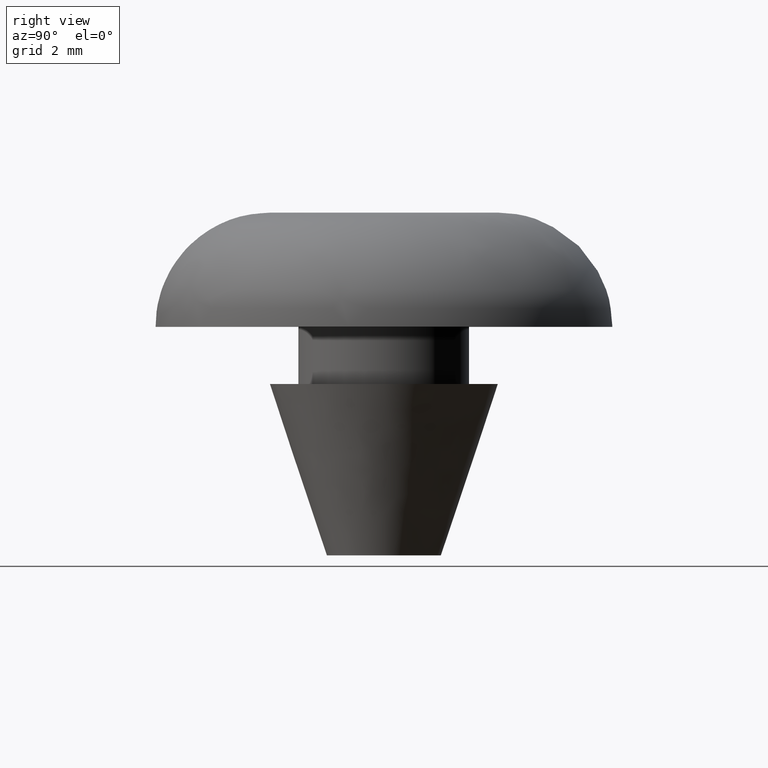
[diagram: clean part render]
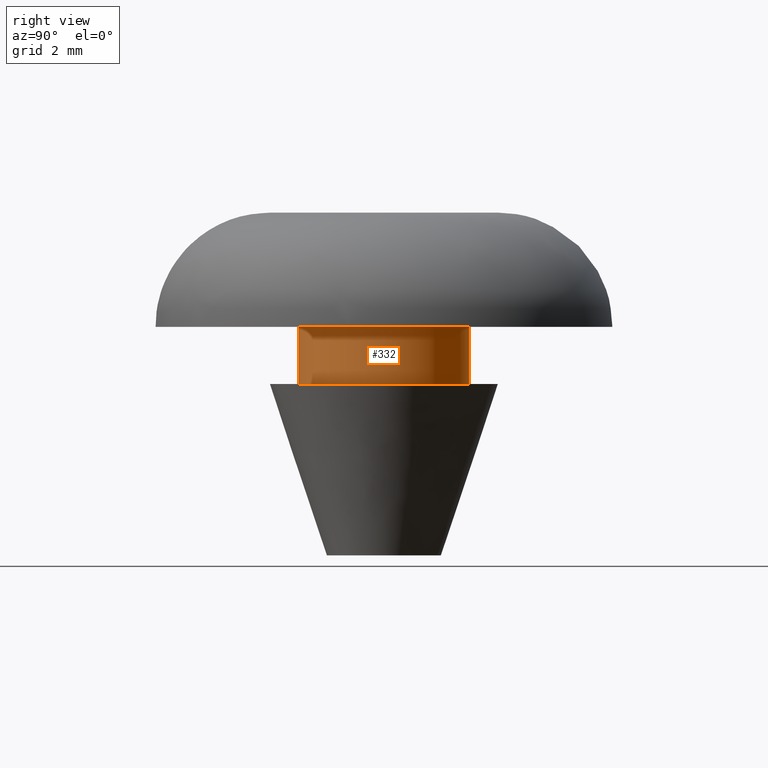
[diagram: same view with one face highlighted and labeled with its STEP entity id]
A machine part, right view. The second image highlights one B-rep face of the part: STEP entity #332.
In plain terms, the highlighted face is a freeform B-spline surface patch.
Its self-contained STEP definition (entity closure, byte-faithful):
#230=CARTESIAN_POINT('',(-0.177051351985138,1.489514289545500,4.025000000000001));
#231=CARTESIAN_POINT('',(-0.134422092956966,1.494581423172908,4.025000000000000));
#232=CARTESIAN_POINT('',(-0.091572809302285,1.497202197632800,4.025000000000000));
#233=CARTESIAN_POINT('',(1.405629388330515,1.588775006935085,4.025000000000000));
#234=CARTESIAN_POINT('',(1.497202197632800,0.091572809302285,4.025000000000000));
#235=CARTESIAN_POINT('',(1.588775006935085,-1.405629388330515,4.025000000000000));
#236=CARTESIAN_POINT('',(0.091572809302285,-1.497202197632800,4.025000000000000));
#237=CARTESIAN_POINT('',(-0.177051351985138,1.489514289545500,2.974375000000000));
#238=CARTESIAN_POINT('',(-0.134422092956966,1.494581423172908,2.974374999999999));
#239=CARTESIAN_POINT('',(-0.091572809302285,1.497202197632800,2.974374999999999));
#240=CARTESIAN_POINT('',(1.405629388330515,1.588775006935085,2.974375000000000));
#241=CARTESIAN_POINT('',(1.497202197632800,0.091572809302285,2.974374999999999));
#242=CARTESIAN_POINT('',(1.588775006935085,-1.405629388330515,2.974375000000000));
#243=CARTESIAN_POINT('',(0.091572809302285,-1.497202197632800,2.974374999999999));
#251=(BOUNDED_SURFACE()B_SPLINE_SURFACE(2,1,((#230,#237),(#231,#238),(#232,#239),(#233,#240),(#234,#241),(#235,#242),(#236,#243)),.UNSPECIFIED.,.F.,.F.,.U.)B_SPLINE_SURFACE_WITH_KNOTS((3,2,2,3),(2,2),(3.078760800517997,3.141592653589793,4.712388980384690,6.283185307179586),(0.0,1.0),.UNSPECIFIED.)GEOMETRIC_REPRESENTATION_ITEM()RATIONAL_B_SPLINE_SURFACE(((0.977505800795127,0.977505800795127),(0.988284271247462,0.988284271247462),(1.0,1.0),(0.707106781186548,0.707106781186548),(1.0,1.0),(0.707106781186548,0.707106781186548),(1.0,1.0)))REPRESENTATION_ITEM('')SURFACE());
#252=CARTESIAN_POINT('',(-0.177050448908415,1.489514396889302,3.999999999999991));
#253=VERTEX_POINT('',#252);
#254=CARTESIAN_POINT('',(1.500000000000000,0.0,4.0));
#255=VERTEX_POINT('',#254);
#256=CARTESIAN_POINT('',(-0.177050448908415,1.489514396889302,3.999999999999992));
#257=CARTESIAN_POINT('',(-0.088835266854029,1.500000000000000,4.000000000000001));
#258=CARTESIAN_POINT('',(0.0,1.500000000000000,4.0));
#259=CARTESIAN_POINT('',(1.500000000000000,1.500000000000000,4.000000000000000));
#260=CARTESIAN_POINT('',(1.500000000000000,0.0,4.0));
#268=(BOUNDED_CURVE()B_SPLINE_CURVE(2,(#256,#257,#258,#259,#260),.UNSPECIFIED.,.F.,.U.)B_SPLINE_CURVE_WITH_KNOTS((3,2,3),(0.229562678445430,0.250000000000000,0.500000000000000),.UNSPECIFIED.)CURVE()GEOMETRIC_REPRESENTATION_ITEM()RATIONAL_B_SPLINE_CURVE((0.956027155859047,0.976056188423826,1.0,0.707106781186548,1.0))REPRESENTATION_ITEM(''));
#269=EDGE_CURVE('',#253,#255,#268,.T.);
#270=ORIENTED_EDGE('',*,*,#269,.T.);
#271=CARTESIAN_POINT('',(0.091571162752735,-1.497202298338267,4.000000000000020));
#272=VERTEX_POINT('',#271);
#273=CARTESIAN_POINT('',(1.500000000000000,0.0,4.0));
#274=CARTESIAN_POINT('',(1.500000000000000,-1.411060655072693,4.0));
#275=CARTESIAN_POINT('',(0.091571162752735,-1.497202298338267,4.000000000000020));
#283=(BOUNDED_CURVE()B_SPLINE_CURVE(2,(#273,#274,#275),.UNSPECIFIED.,.F.,.U.)B_SPLINE_CURVE_WITH_KNOTS((3,3),(0.500000000000000,0.739333152000492),.UNSPECIFIED.)CURVE()GEOMETRIC_REPRESENTATION_ITEM()RATIONAL_B_SPLINE_CURVE((1.0,0.719603770967226,0.976072448362178))REPRESENTATION_ITEM(''));
#284=EDGE_CURVE('',#255,#272,#283,.T.);
#285=ORIENTED_EDGE('',*,*,#284,.T.);
#286=CARTESIAN_POINT('',(0.091571182612992,-1.497202297123606,3.0));
#287=VERTEX_POINT('',#286);
#288=CARTESIAN_POINT('',(0.091571162752735,-1.497202298338267,4.000000000000020));
#289=CARTESIAN_POINT('',(0.091571182612992,-1.497202297123606,3.0));
#290=QUASI_UNIFORM_CURVE('',1,(#288,#289),.UNSPECIFIED.,.F.,.U.);
#291=EDGE_CURVE('',#272,#287,#290,.T.);
#292=ORIENTED_EDGE('',*,*,#291,.T.);
#293=CARTESIAN_POINT('',(1.500000000000000,0.0,3.0));
#294=VERTEX_POINT('',#293);
#295=CARTESIAN_POINT('',(1.500000000000000,0.0,3.0));
#296=CARTESIAN_POINT('',(1.500000000000000,-1.411060636320122,3.000000000000000));
#297=CARTESIAN_POINT('',(0.091571182612992,-1.497202297123605,3.000000000000000));
#305=(BOUNDED_CURVE()B_SPLINE_CURVE(2,(#295,#296,#297),.UNSPECIFIED.,.F.,.U.)B_SPLINE_CURVE_WITH_KNOTS((3,3),(0.500000000000000,0.739333149711674),.UNSPECIFIED.)CURVE()GEOMETRIC_REPRESENTATION_ITEM()RATIONAL_B_SPLINE_CURVE((1.0,0.719603773648744,0.976072443456796))REPRESENTATION_ITEM(''));
#306=EDGE_CURVE('',#294,#287,#305,.T.);
#307=ORIENTED_EDGE('',*,*,#306,.F.);
#308=CARTESIAN_POINT('',(-0.177050459774724,1.489514395597690,3.0));
#309=VERTEX_POINT('',#308);
#310=CARTESIAN_POINT('',(-0.177050459774724,1.489514395597690,3.000000000000000));
#311=CARTESIAN_POINT('',(-0.088835277835213,1.500000000000000,3.000000000000000));
#312=CARTESIAN_POINT('',(0.0,1.500000000000000,3.0));
#313=CARTESIAN_POINT('',(1.500000000000000,1.500000000000000,3.0));
#314=CARTESIAN_POINT('',(1.500000000000000,0.0,3.0));
#322=(BOUNDED_CURVE()B_SPLINE_CURVE(2,(#310,#311,#312,#313,#314),.UNSPECIFIED.,.F.,.U.)B_SPLINE_CURVE_WITH_KNOTS((3,2,3),(0.229562675979604,0.250000000000000,0.500000000000000),.UNSPECIFIED.)CURVE()GEOMETRIC_REPRESENTATION_ITEM()RATIONAL_B_SPLINE_CURVE((0.956027151025916,0.976056185534931,1.0,0.707106781186548,1.0))REPRESENTATION_ITEM(''));
#323=EDGE_CURVE('',#309,#294,#322,.T.);
#324=ORIENTED_EDGE('',*,*,#323,.F.);
#325=CARTESIAN_POINT('',(-0.177050448908415,1.489514396889302,3.999999999999991));
#326=CARTESIAN_POINT('',(-0.177050459774724,1.489514395597690,3.0));
#327=QUASI_UNIFORM_CURVE('',1,(#325,#326),.UNSPECIFIED.,.F.,.U.);
#328=EDGE_CURVE('',#253,#309,#327,.T.);
#329=ORIENTED_EDGE('',*,*,#328,.F.);
#330=EDGE_LOOP('',(#270,#285,#292,#307,#324,#329));
#331=FACE_OUTER_BOUND('',#330,.T.);
#332=ADVANCED_FACE('',(#331),#251,.T.);